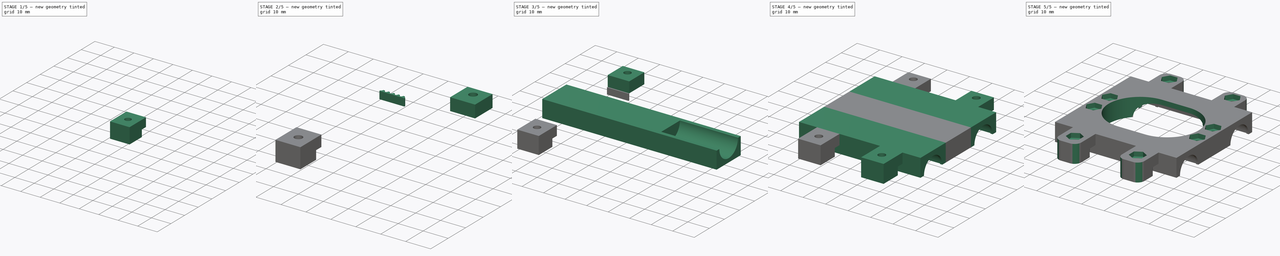
[diagram: build sequence overview — one tinted view per stage of 5, left to right]
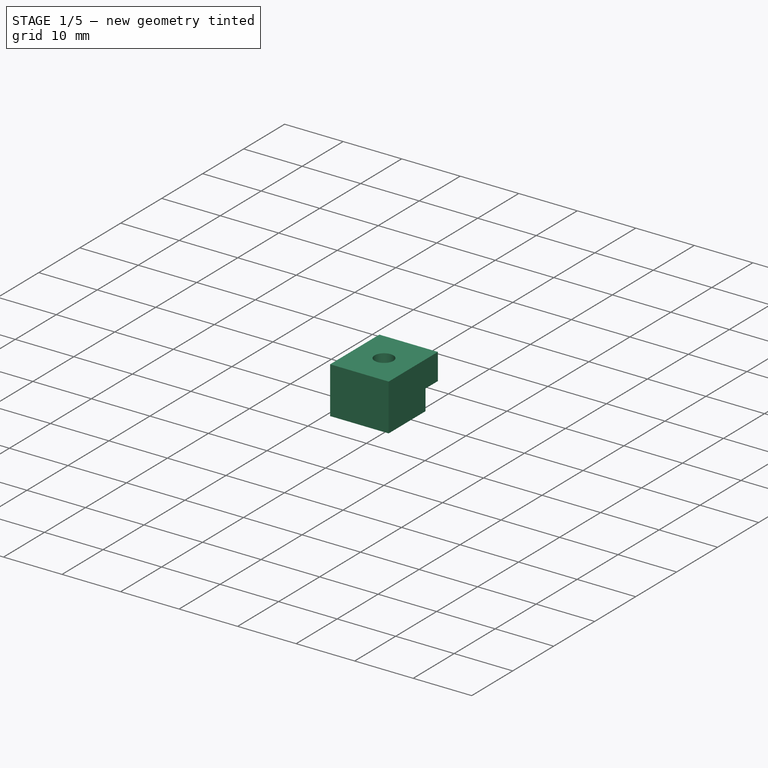
[diagram: stage 1 of 5 — iso view after this stage's code; geometry added in this stage tinted green]
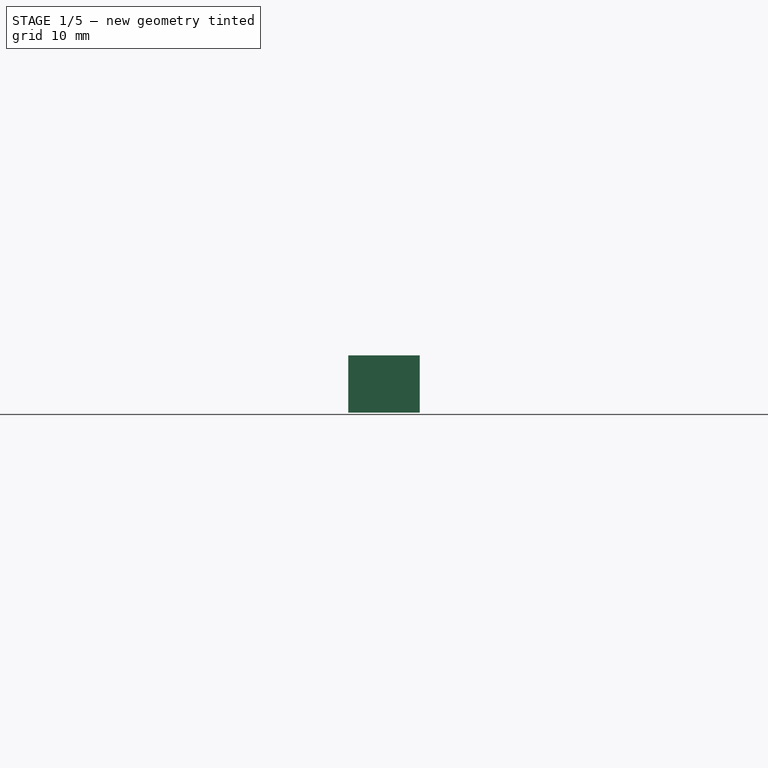
[diagram: stage 1 of 5 — front view after this stage's code; geometry added in this stage tinted green]
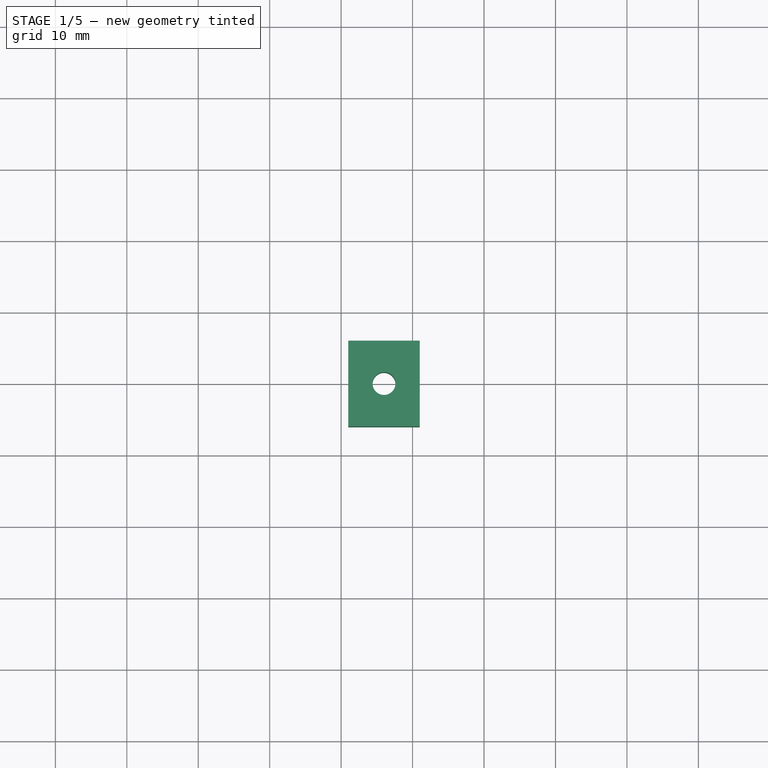
[diagram: stage 1 of 5 — top view after this stage's code; geometry added in this stage tinted green]
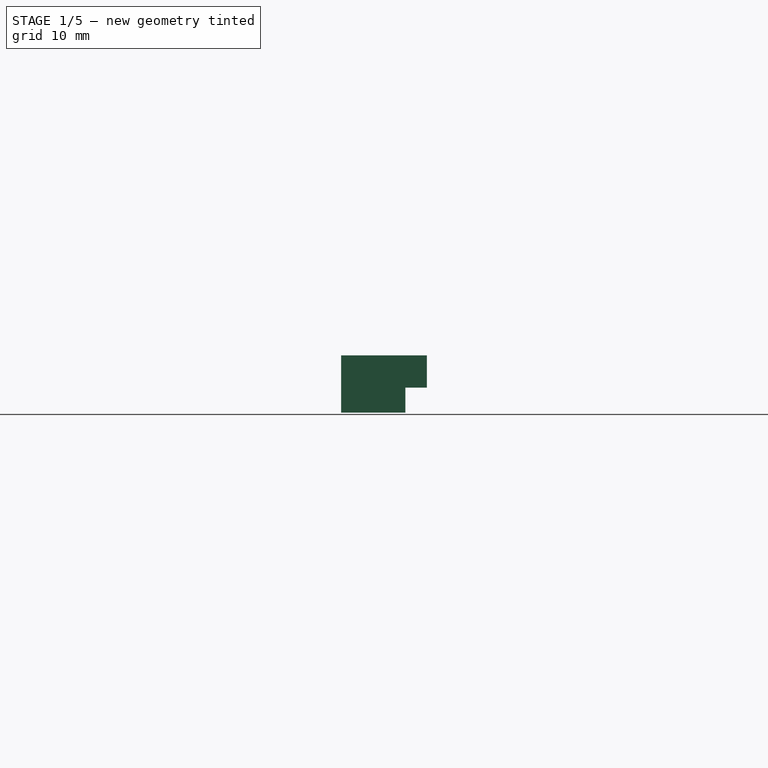
[diagram: stage 1 of 5 — right view after this stage's code; geometry added in this stage tinted green]
FCSTD DOCUMENT  (FreeCAD 0.18R15441 (Git))
Label: CarriageHalf2_Alt1
License: All rights reserved
LicenseURL: http://en.wikipedia.org/wiki/All_rights_reserved
objects: Sketcher::SketchObject×8, PartDesign::Pad×6, Part::Mirroring×4, Part::Box×4, PartDesign::Plane×3, PartDesign::Body×3, Part::Cylinder×2, Part::FeaturePython×2, App::Part×2, PartDesign::Pocket×2, PartDesign::Fillet×2, Part::Cut×1, Part::MultiFuse×1, PartDesign::FeatureBase×1
note: 47 computed .brp shape members not serialized (recipe doc carries the construction recipe); baked Part::Feature solids carry a one-line shape summary decoded from their .brp

FEATURE [Part::Box] Box001  label="ClipCube"
  AttacherType = Attacher::AttachEngine3D
  Height = 8
  Length = 10
  Placement = pos=(0,-2,0) rot=(0,0,1;0rad)
  Width = 12
FEATURE [Part::Cylinder] Cylinder  label="ClipScrewHole"
  Angle = 360
  AttacherType = Attacher::AttachEngine3D
  Height = 8
  Placement = pos=(5,4,0) rot=(0,0,1;0rad)
  Radius = 1.6
FEATURE [Sketcher::SketchObject] Sketch015  label="HotendClampingSketch"
  MapMode = 5
  sketch-geometry (10):
    g0: ArcOfCircle CenterX=-6 CenterY=0 CenterZ=0 NormalX=0 NormalY=0 NormalZ=1 AngleXU=0 Radius=14 StartAngle=1.5708 EndAngle=4.71239
    g1: ArcOfCircle CenterX=6 CenterY=0 CenterZ=0 NormalX=0 NormalY=0 NormalZ=1 AngleXU=0 Radius=14 StartAngle=4.71239 EndAngle=7.85398
    g2: LineSegment StartX=-6 StartY=-14 StartZ=0 EndX=6 EndY=-14 EndZ=0
    g3: LineSegment StartX=-6 StartY=14 StartZ=0 EndX=6 EndY=14 EndZ=0
    g4: LineSegment [constr] StartX=-6 StartY=0 StartZ=0 EndX=0 EndY=0 EndZ=0
    g5: LineSegment [constr] StartX=0 StartY=0 StartZ=0 EndX=6 EndY=0 EndZ=0
    g6: Circle CenterX=23 CenterY=5 CenterZ=0 NormalX=0 NormalY=0 NormalZ=1 AngleXU=0 Radius=1.6
    g7: Circle CenterX=23 CenterY=-5 CenterZ=0 NormalX=0 NormalY=0 NormalZ=1 AngleXU=0 Radius=1.6
    g8: Circle CenterX=-23 CenterY=5 CenterZ=0 NormalX=0 NormalY=0 NormalZ=1 AngleXU=0 Radius=1.6
    g9: Circle CenterX=-23 CenterY=-5 CenterZ=0 NormalX=0 NormalY=0 NormalZ=1 AngleXU=0 Radius=1.6
  constraints (23):
    c: Tangent(g0,g3) = 1.5708
    c: Tangent(g0,g2) = -1.5708
    c: Tangent(g2,g1) = -1.5708
    c: Tangent(g3,g1) = 1.5708
    c: Horizontal(g2)
    c: Equal(g0,g1)
    c: PointOnObject(g0,g-1)
    c: Coincident(g4,g0)
    c: Coincident(g4,g-1)
    c: Coincident(g5,g-1)
    c: Coincident(g5,g1)
    c: Equal(g4,g5)
    c: Radius(g1) = 14
    c: Distance(g4) = 6
    c: Symmetric(g8,g6,g-2)
    c: Symmetric(g6,g7,g-1)
    c: Symmetric(g8,g9,g-1)
    c: Equal(g6,g8)
    c: Equal(g8,g9)
    c: Equal(g9,g7)
    c: Radius(g6) = 1.6
    c: Distance(g6,g8) = 46
    c: Distance(g6,g7) = 10
FEATURE [Part::Box] Box003  label="ClipBeltHole"
  AttacherType = Attacher::AttachEngine3D
  Height = 3.5
  Length = 10
  Placement = pos=(0,7,0) rot=(0,0,1;0rad)
  Width = 3
FEATURE [Part::FeaturePython] XOR  label="HalfClip"  # WARN: FeaturePython — macro-defined, semantics opaque (R4)
  Objects = -> [Box001,Cylinder,Box003]
  Placement = pos=(9,-34,-8) rot=(0,0,1;0rad)
  Tolerance = 0
FEATURE [Part::Mirroring] Part__Mirroring004  label="HalfClip_Mirror"
  Base = (0,0,0)
  Normal = (1,0,0)
  Source = -> XOR
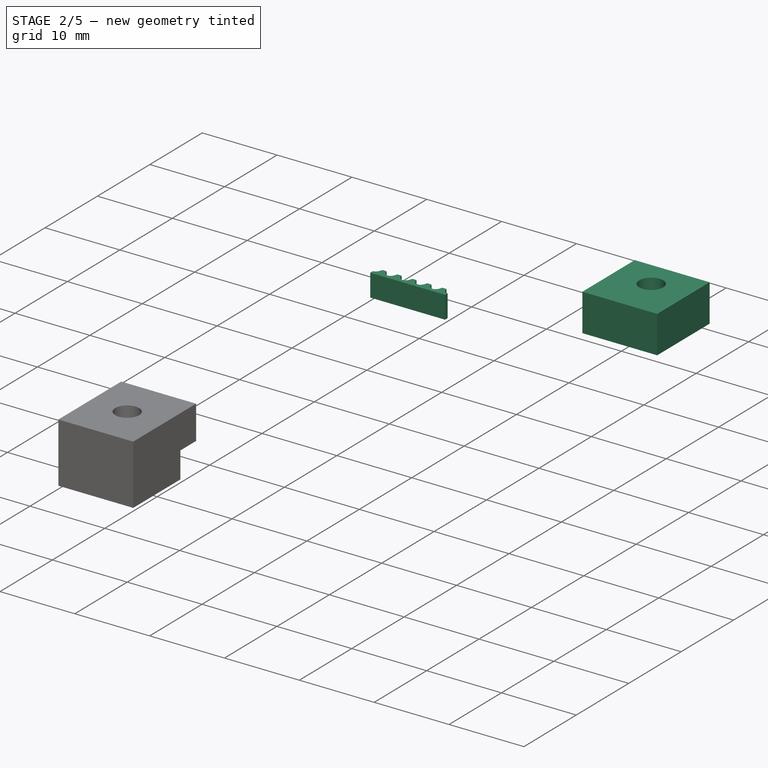
[diagram: stage 2 of 5 — iso view after this stage's code; geometry added in this stage tinted green]
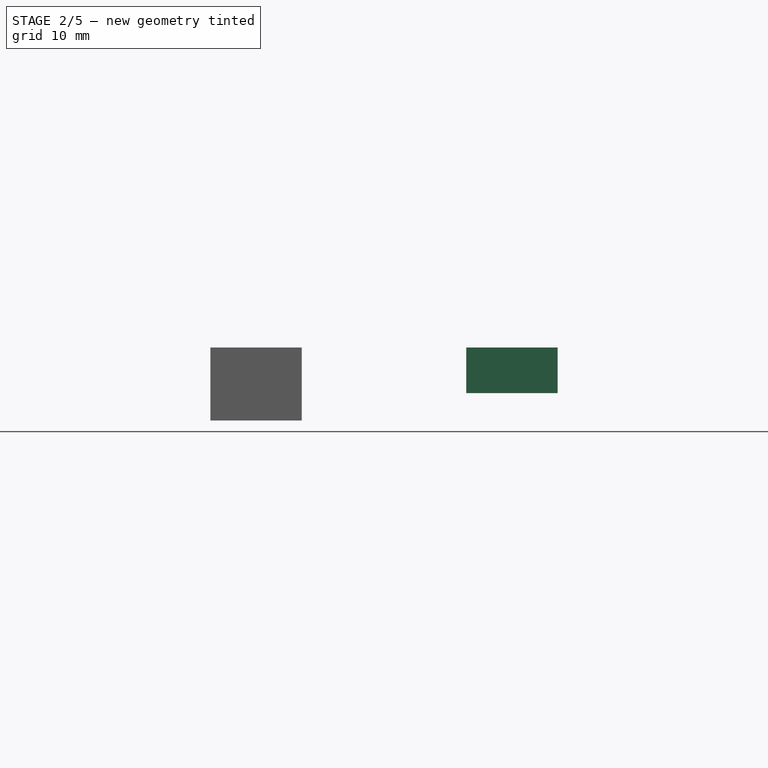
[diagram: stage 2 of 5 — front view after this stage's code; geometry added in this stage tinted green]
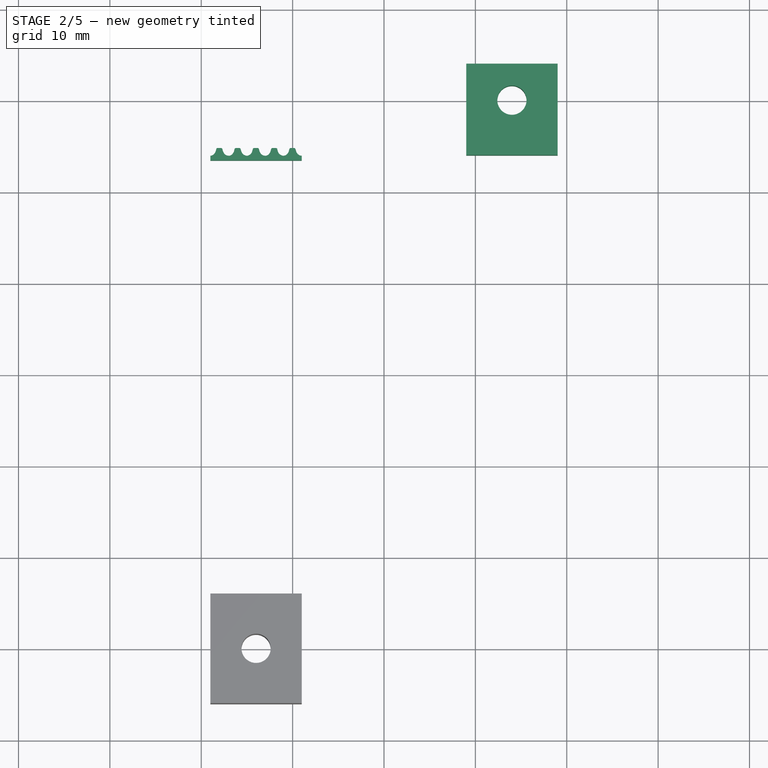
[diagram: stage 2 of 5 — top view after this stage's code; geometry added in this stage tinted green]
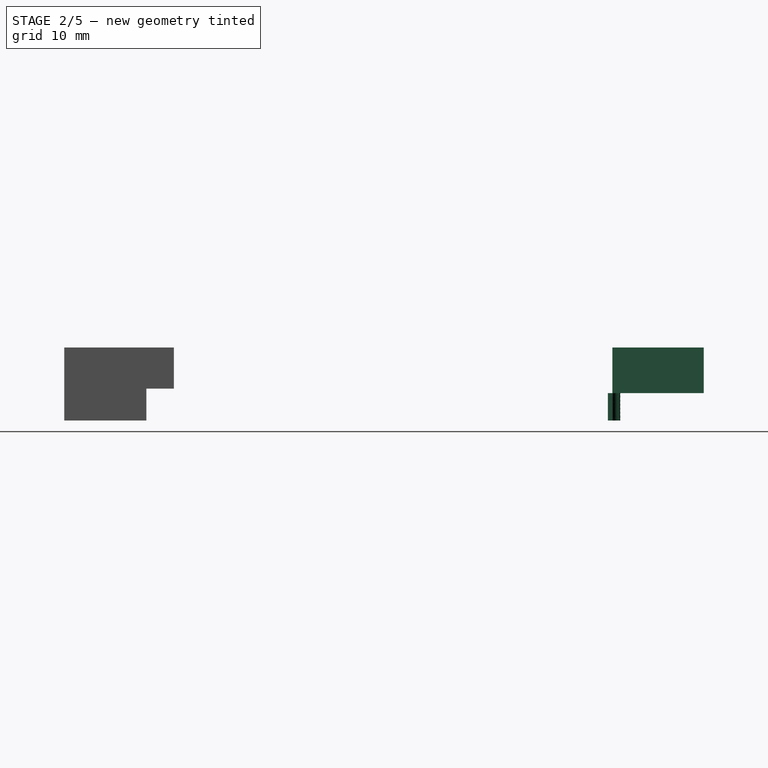
[diagram: stage 2 of 5 — right view after this stage's code; geometry added in this stage tinted green]
FEATURE [Part::Box] Box002  label="BeltClipCube"
  AttacherType = Attacher::AttachEngine3D
  Height = 5
  Length = 10
  Width = 10
FEATURE [Part::Cylinder] Cylinder001  label="BeltClipScrewHole"
  Angle = 360
  AttacherType = Attacher::AttachEngine3D
  Height = 5
  Placement = pos=(5,6,0) rot=(0,0,1;0rad)
  Radius = 1.6
FEATURE [Part::Cut] Cut001  label="BeltHalfClipCut"
  Base = -> Box002
  Placement = pos=(9,24,-5) rot=(0,0,1;0rad)
  Tool = -> Cylinder001
FEATURE [Sketcher::SketchObject] Sketch008  label="BT_TeethSketch"
  MapMode = 5
  Support = -> [XY_Plane006]
  sketch-geometry (8):
    g0: BSplineCurve PolesCount=12 KnotsCount=8 Degree=3 IsPeriodic=0
    g1: BSplineCurve PolesCount=12 KnotsCount=8 Degree=3 IsPeriodic=0
    g2: BSplineCurve PolesCount=12 KnotsCount=8 Degree=3 IsPeriodic=0
    g3: LineSegment StartX=10 StartY=0.5 StartZ=0 EndX=0 EndY=0.5 EndZ=0
    g4: LineSegment StartX=0 StartY=0.5 StartZ=0 EndX=0 EndY=0 EndZ=0
    g5: BSplineCurve PolesCount=12 KnotsCount=8 Degree=3 IsPeriodic=0
    g6: BSplineCurve PolesCount=12 KnotsCount=8 Degree=3 IsPeriodic=0
    g7: LineSegment StartX=10 StartY=0 StartZ=0 EndX=10 EndY=0.5 EndZ=0
  constraints (23):
    c: Coincident(g1,g0)
    c: PointOnObject(g0,g-1)
    c: PointOnObject(g1,g-1)
    c: PointOnObject(g2,g-1)
    c: Horizontal(g3)
    c: Coincident(g4,g3)
    c: Coincident(g4,g-1)
    c: Vertical(g4)
    c: Coincident(g5,g2)
    c: PointOnObject(g5,g-1)
    c: Coincident(g6,g5)
    c: PointOnObject(g6,g-1)
    c: Distance(g0,g0) = 2
    c: Distance(g0,g1) = 2
    c: Distance(g1,g2) = 2
    c: Distance(g2,g5) = 2
    c: Distance(g5,g6) = 2
    c: Coincident(g7,g6)
    c: Coincident(g7,g3)
    c: Vertical(g7)
    c: Coincident(g1,g2)
    c: Coincident(g0,g4)
    c: Distance(g4) = 0.5
FEATURE [PartDesign::Pad] Pad  label="BT_TeethPad"
  Length = 3
  Length2 = 100
  Profile = -> Sketch008
  Type = 0
FEATURE [PartDesign::Body] Body  label="BeltTeethBody"
  Group = -> [Sketch008,Pad]
  Origin = -> Origin006
  Placement = pos=(19,24,-8) rot=(0,0,1;3.14159rad)
  Tip = -> Pad
FEATURE [Part::Mirroring] Part__Mirroring003  label="BeltTeethBody_Mirror"
  Base = (0,0,0)
  Normal = (1,0,0)
  Source = -> Body
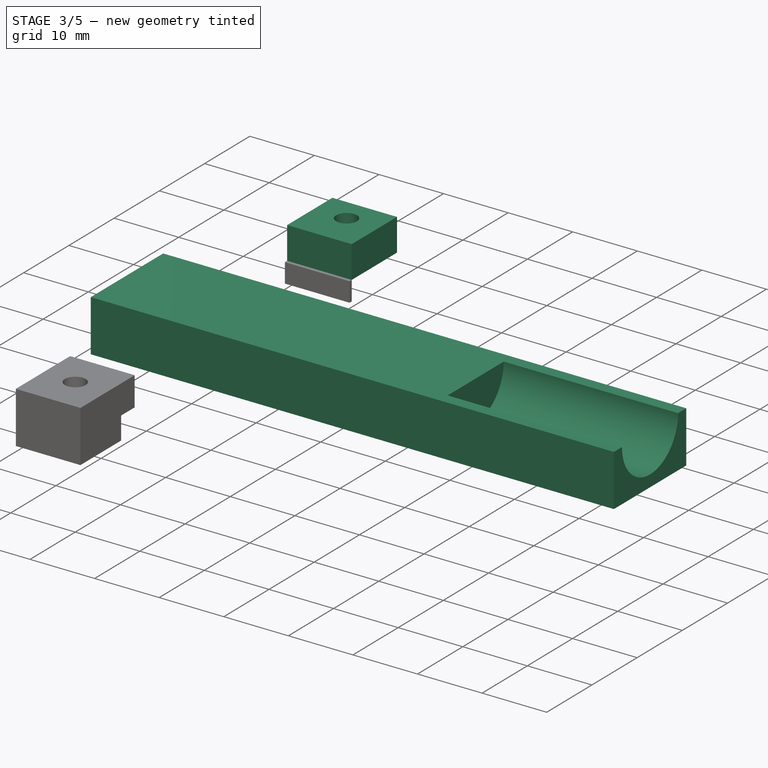
[diagram: stage 3 of 5 — iso view after this stage's code; geometry added in this stage tinted green]
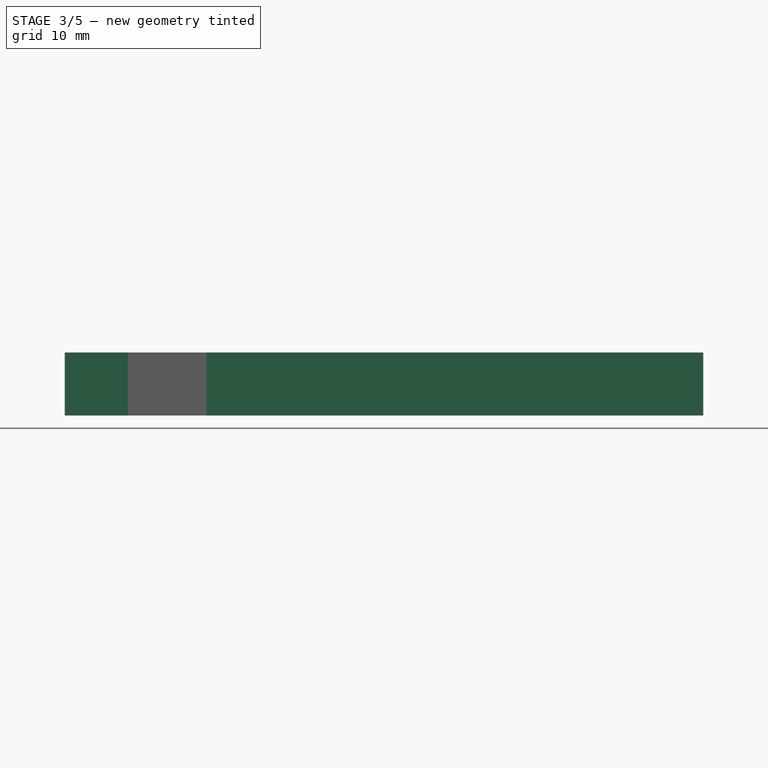
[diagram: stage 3 of 5 — front view after this stage's code; geometry added in this stage tinted green]
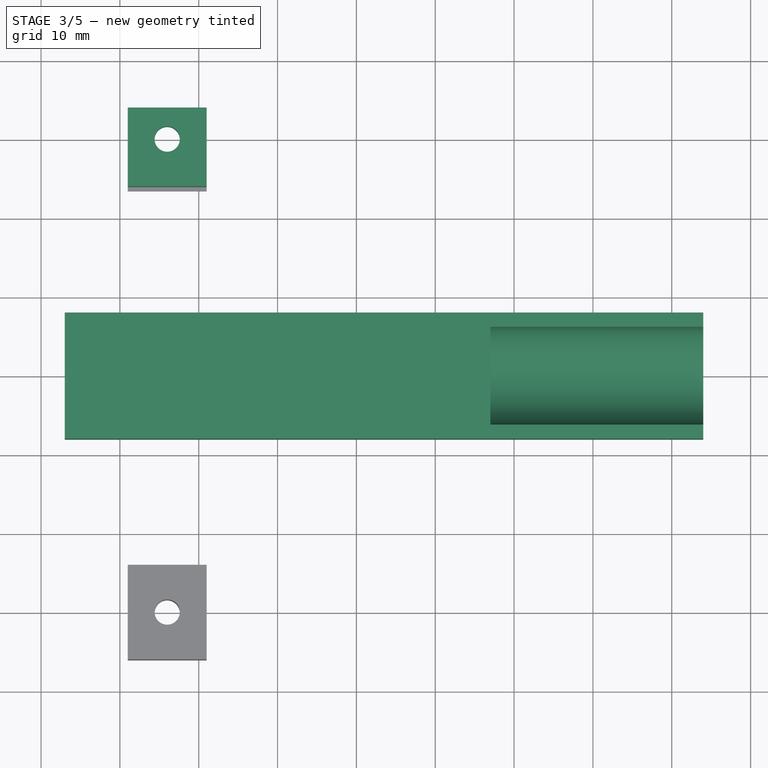
[diagram: stage 3 of 5 — top view after this stage's code; geometry added in this stage tinted green]
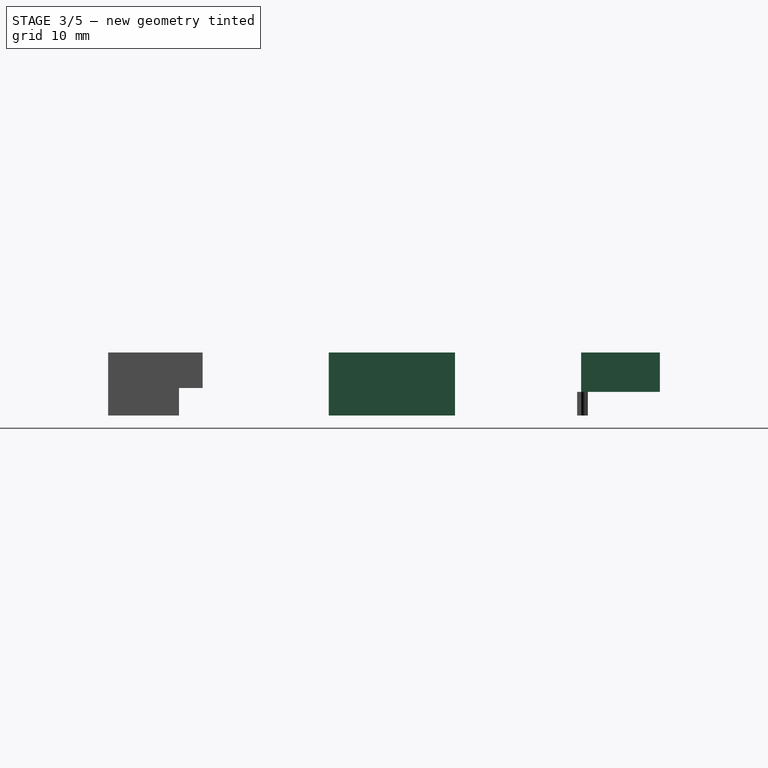
[diagram: stage 3 of 5 — right view after this stage's code; geometry added in this stage tinted green]
FEATURE [Sketcher::SketchObject] Sketch002  label="ClipSketch"
  MapMode = 5
  Placement = pos=(0,0,0) rot=(0.57735,0.57735,0.57735;2.0944rad)
  Support = -> [YZ_Plane002]
  sketch-geometry (6):
    g0: LineSegment StartX=-8 StartY=0 StartZ=0 EndX=-8 EndY=-8 EndZ=0
    g1: LineSegment StartX=8 StartY=0 StartZ=0 EndX=8 EndY=-8 EndZ=0
    g2: LineSegment StartX=-8 StartY=-8 StartZ=0 EndX=8 EndY=-8 EndZ=0
    g3: ArcOfCircle CenterX=0 CenterY=0 CenterZ=0 NormalX=0 NormalY=0 NormalZ=1 AngleXU=0 Radius=6.2 StartAngle=3.14159 EndAngle=6.28319
    g4: LineSegment StartX=-8 StartY=0 StartZ=0 EndX=-6.2 EndY=0 EndZ=0
    g5: LineSegment StartX=6.2 StartY=0 StartZ=0 EndX=8 EndY=0 EndZ=0
  constraints (17):
    c: Symmetric(g0,g1,g-2)
    c: PointOnObject(g0,g-1)
    c: Coincident(g2,g0)
    c: Coincident(g2,g1)
    c: Distance(g1) = 8
    c: PointOnObject(g3,g-1)
    c: PointOnObject(g3,g-1)
    c: Radius(g3) = 6.2
    c: Coincident(g3,g-1)
    c: Distance(g2) = 16
    c: Horizontal(g2)
    c: Vertical(g0)
    c: Coincident(g4,g0)
    c: Coincident(g4,g3)
    c: Coincident(g5,g3)
    c: Coincident(g5,g1)
    c: Vertical(g1)
FEATURE [Sketcher::SketchObject] Sketch001  label="ClipNotch1Sketch"
  ExternalGeometry = -> [Sketch002]
  MapMode = 5
  Placement = pos=(0,0,0) rot=(0.57735,0.57735,0.57735;2.0944rad)
  Support = -> [YZ_Plane002]
  sketch-geometry (4):
    g0: ArcOfCircle CenterX=0 CenterY=0 CenterZ=0 NormalX=0 NormalY=0 NormalZ=1 AngleXU=0 Radius=6.2 StartAngle=3.14159 EndAngle=6.28319
    g1: ArcOfCircle CenterX=0 CenterY=0 CenterZ=0 NormalX=0 NormalY=0 NormalZ=1 AngleXU=0 Radius=5.8 StartAngle=3.14159 EndAngle=6.28319
    g2: LineSegment StartX=-6.2 StartY=0 StartZ=0 EndX=-5.8 EndY=0 EndZ=0
    g3: LineSegment StartX=5.8 StartY=0 StartZ=0 EndX=6.2 EndY=0 EndZ=0
  constraints (11):
    c: Coincident(g0,g-1)
    c: Coincident(g0,g-3)
    c: PointOnObject(g0,g-1)
    c: Coincident(g1,g0)
    c: Coincident(g2,g0)
    c: Coincident(g2,g1)
    c: Horizontal(g2)
    c: Coincident(g3,g1)
    c: Coincident(g3,g0)
    c: Horizontal(g3)
    c: Radius(g1) = 5.8
FEATURE [PartDesign::Pad] Pad009  label="ClipPad"
  Length = 54
  Length2 = 100
  Placement = pos=(0,0,0) rot=(0.57735,0.57735,0.57735;2.0944rad)
  Profile = -> Sketch002
  Type = 0
FEATURE [PartDesign::Pad] Pad001  label="ClipNotch1Pad"
  BaseFeature = -> Pad009
  Length = 1
  Length2 = 100
  Placement = pos=(0,0,0) rot=(0.57735,0.57735,0.57735;2.0944rad)
  Profile = -> Sketch001
  Type = 0
FEATURE [PartDesign::Plane] DatumPlane  label="ClipNotch2Plane"
  AttachmentOffset = pos=(0,0,13.5) rot=(0,0,1;0rad)
  Length = 24
  MapMode = 5
  Placement = pos=(13.5,-1.5243e-12,1.5243e-12) rot=(0.57735,0.57735,0.57735;2.0944rad)
  ResizeMode = 0
  Support = -> [YZ_Plane002]
  Width = 24
FEATURE [Sketcher::SketchObject] Sketch003  label="ClipNotch2Sketch"
  ExternalGeometry = -> [Sketch001]
  MapMode = 5
  Placement = pos=(13.5,-1.5243e-12,1.5243e-12) rot=(0.57735,0.57735,0.57735;2.0944rad)
  Support = -> [DatumPlane]
  sketch-geometry (4):
    g0: ArcOfCircle CenterX=0 CenterY=0 CenterZ=0 NormalX=0 NormalY=0 NormalZ=1 AngleXU=0 Radius=6.2 StartAngle=3.14159 EndAngle=6.28319
    g1: ArcOfCircle CenterX=0 CenterY=0 CenterZ=0 NormalX=0 NormalY=0 NormalZ=1 AngleXU=0 Radius=5.8 StartAngle=3.14159 EndAngle=6.28319
    g2: LineSegment StartX=-6.2 StartY=0 StartZ=0 EndX=-5.8 EndY=0 EndZ=0
    g3: LineSegment StartX=5.8 StartY=0 StartZ=0 EndX=6.2 EndY=0 EndZ=0
  constraints (10):
    c: Coincident(g0,g-1)
    c: Coincident(g0,g-3)
    c: Coincident(g0,g-3)
    c: Coincident(g1,g0)
    c: Coincident(g1,g-4)
    c: Coincident(g1,g-4)
    c: Coincident(g2,g0)
    c: Coincident(g2,g1)
    c: Coincident(g3,g1)
    c: Coincident(g3,g0)
FEATURE [PartDesign::Pad] Pad010  label="ClipNotch2Pad"
  BaseFeature = -> Pad001
  Length = 1
  Length2 = 100
  Placement = pos=(0,0,0) rot=(0.57735,0.57735,0.57735;2.0944rad)
  Profile = -> Sketch003
  Reversed = true
  Type = 0
FEATURE [Part::Box] Box  label="BaseCube"
  AttacherType = Attacher::AttachEngine3D
  Height = 8
  Length = 54
  Placement = pos=(-27,-8,-8) rot=(0,0,1;0rad)
  Width = 16
FEATURE [Part::Mirroring] Part__Mirroring002  label="BeltHalfClipCut_Mirror"
  Base = (0,0,0)
  Normal = (1,0,0)
  Source = -> Cut001
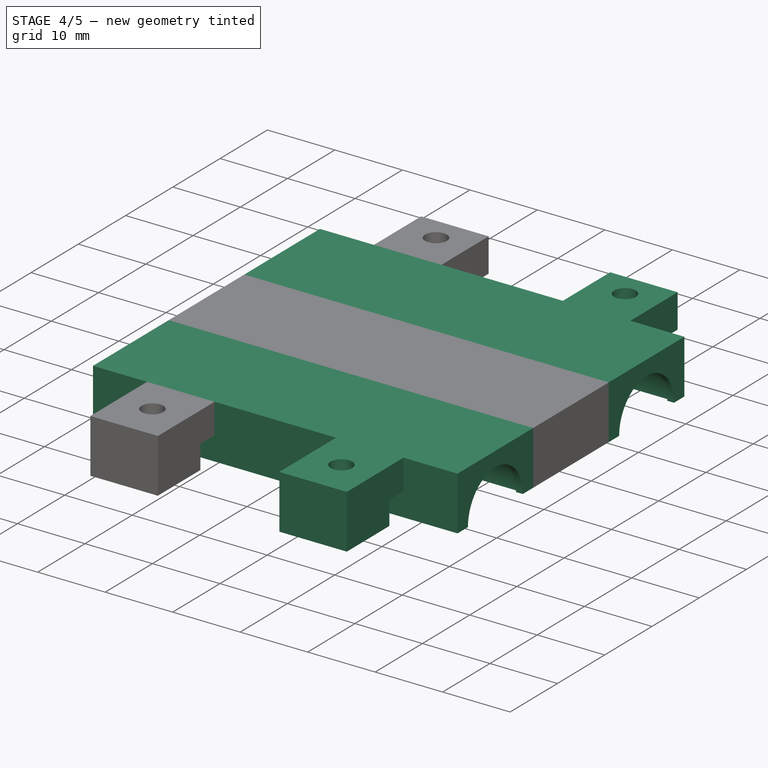
[diagram: stage 4 of 5 — iso view after this stage's code; geometry added in this stage tinted green]
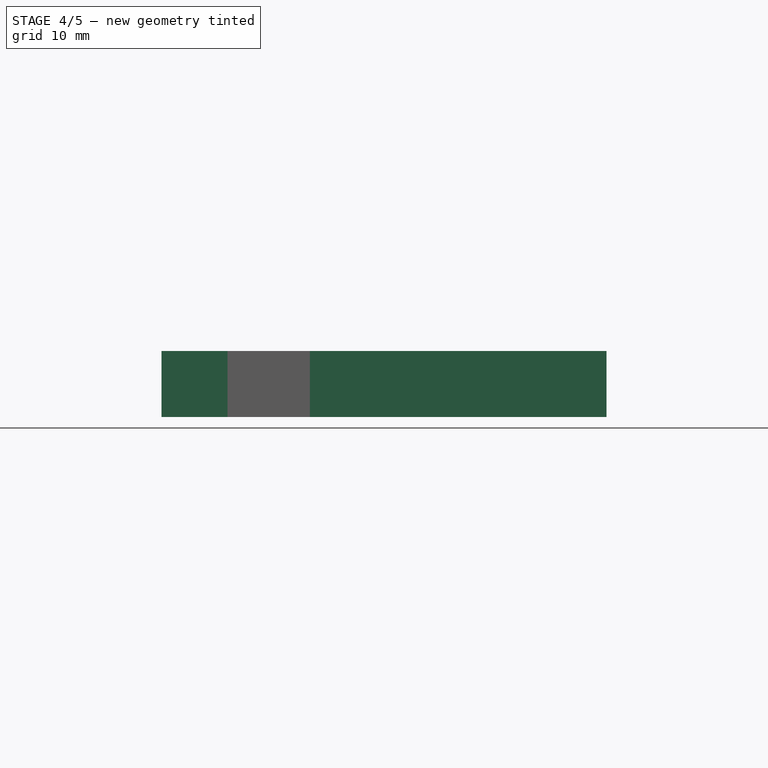
[diagram: stage 4 of 5 — front view after this stage's code; geometry added in this stage tinted green]
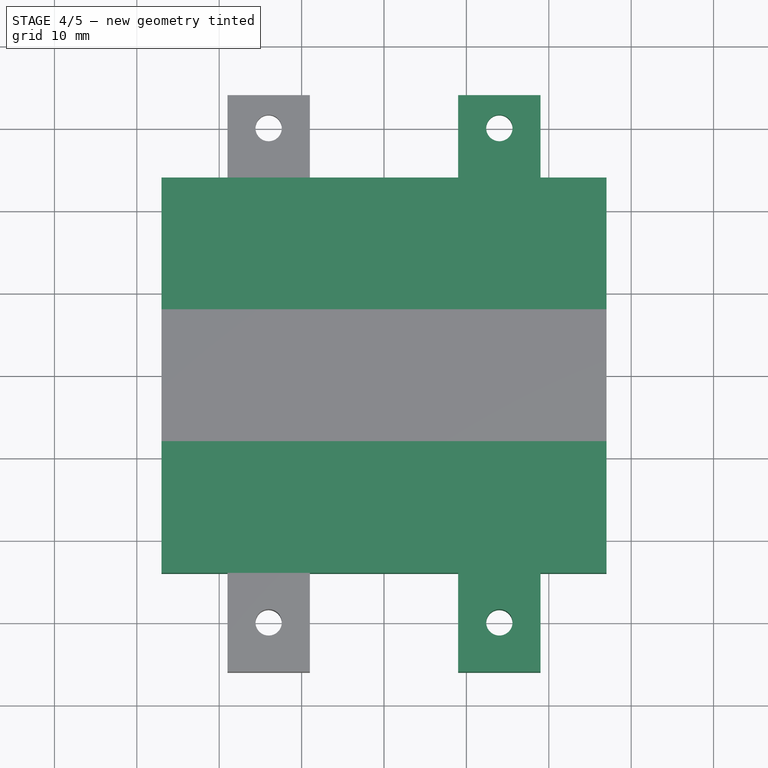
[diagram: stage 4 of 5 — top view after this stage's code; geometry added in this stage tinted green]
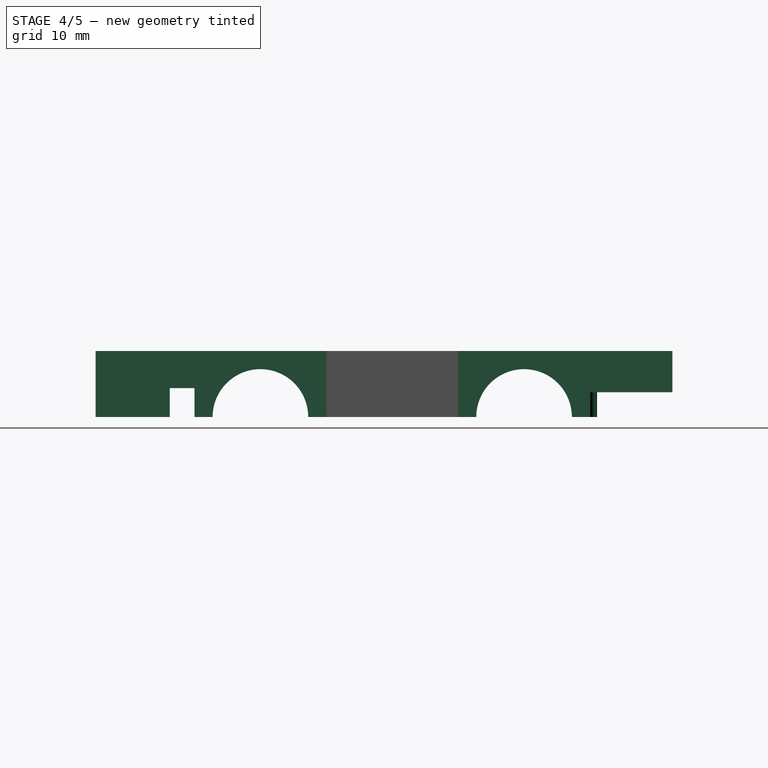
[diagram: stage 4 of 5 — right view after this stage's code; geometry added in this stage tinted green]
FEATURE [PartDesign::Plane] DatumPlane001  label="ClipNotch3Plane"
  AttachmentOffset = pos=(0,0,40.5) rot=(0,0,1;0rad)
  Length = 24
  MapMode = 5
  Placement = pos=(40.5,-4.5728e-12,4.5728e-12) rot=(0.57735,0.57735,0.57735;2.0944rad)
  ResizeMode = 0
  Support = -> [YZ_Plane002]
  Width = 24
FEATURE [Sketcher::SketchObject] Sketch004  label="ClipNotch3Sketch"
  ExternalGeometry = -> [Sketch001]
  MapMode = 5
  Placement = pos=(40.5,-4.5728e-12,4.5728e-12) rot=(0.57735,0.57735,0.57735;2.0944rad)
  Support = -> [DatumPlane001]
  sketch-geometry (4):
    g0: ArcOfCircle CenterX=0 CenterY=0 CenterZ=0 NormalX=0 NormalY=0 NormalZ=1 AngleXU=0 Radius=5.8 StartAngle=3.14159 EndAngle=6.28319
    g1: ArcOfCircle CenterX=0 CenterY=0 CenterZ=0 NormalX=0 NormalY=0 NormalZ=1 AngleXU=0 Radius=6.2 StartAngle=3.14159 EndAngle=6.28319
    g2: LineSegment StartX=-6.2 StartY=0 StartZ=0 EndX=-5.8 EndY=0 EndZ=0
    g3: LineSegment StartX=5.8 StartY=0 StartZ=0 EndX=6.2 EndY=0 EndZ=0
  constraints (10):
    c: Coincident(g0,g-1)
    c: Coincident(g0,g-3)
    c: Coincident(g0,g-3)
    c: Coincident(g1,g0)
    c: Coincident(g1,g-4)
    c: Coincident(g1,g-4)
    c: Coincident(g2,g1)
    c: Coincident(g2,g0)
    c: Coincident(g3,g0)
    c: Coincident(g3,g1)
FEATURE [PartDesign::Pad] Pad011  label="ClipNotch3Pad"
  BaseFeature = -> Pad010
  Length = 1
  Length2 = 100
  Placement = pos=(0,0,0) rot=(0.57735,0.57735,0.57735;2.0944rad)
  Profile = -> Sketch004
  Type = 0
FEATURE [PartDesign::Plane] DatumPlane002  label="ClipNotch4Plane"
  AttachmentOffset = pos=(0,0,54) rot=(0,0,1;0rad)
  Length = 24
  MapMode = 5
  Placement = pos=(54,-6.0971e-12,6.0971e-12) rot=(0.57735,0.57735,0.57735;2.0944rad)
  ResizeMode = 0
  Support = -> [YZ_Plane002]
  Width = 24
FEATURE [Sketcher::SketchObject] Sketch005  label="ClipNotch4Sketch"
  ExternalGeometry = -> [Sketch001]
  MapMode = 5
  Placement = pos=(54,-6.0971e-12,6.0971e-12) rot=(0.57735,0.57735,0.57735;2.0944rad)
  Support = -> [DatumPlane002]
  sketch-geometry (4):
    g0: ArcOfCircle CenterX=0 CenterY=0 CenterZ=0 NormalX=0 NormalY=0 NormalZ=1 AngleXU=0 Radius=5.8 StartAngle=3.14159 EndAngle=6.28319
    g1: ArcOfCircle CenterX=0 CenterY=0 CenterZ=0 NormalX=0 NormalY=0 NormalZ=1 AngleXU=0 Radius=6.2 StartAngle=3.14159 EndAngle=6.28319
    g2: LineSegment StartX=-6.2 StartY=0 StartZ=0 EndX=-5.8 EndY=0 EndZ=0
    g3: LineSegment StartX=5.8 StartY=0 StartZ=0 EndX=6.2 EndY=0 EndZ=0
  constraints (10):
    c: Coincident(g0,g-1)
    c: Coincident(g0,g-3)
    c: Coincident(g0,g-3)
    c: Coincident(g1,g0)
    c: Coincident(g1,g-4)
    c: Coincident(g1,g-4)
    c: Coincident(g2,g1)
    c: Coincident(g2,g0)
    c: Coincident(g3,g0)
    c: Coincident(g3,g1)
FEATURE [PartDesign::Pad] Pad012  label="ClipNotch4Pad"
  BaseFeature = -> Pad011
  Length = 1
  Length2 = 100
  Placement = pos=(0,0,0) rot=(0.57735,0.57735,0.57735;2.0944rad)
  Profile = -> Sketch005
  Reversed = true
  Type = 0
FEATURE [PartDesign::Body] Body001  label="Clip_LM6UU"
  Group = -> [Sketch002,Pad009,Sketch001,Pad001,DatumPlane,Sketch003,Pad010,DatumPlane001,Sketch004,Pad011,DatumPlane002,Sketch005,Pad012]
  Origin = -> Origin002
  Placement = pos=(-27,16,-8) rot=(1,0,0;3.14159rad)
  Tip = -> Pad012
FEATURE [Part::Mirroring] Part__Mirroring  label="Clip_LM6UU_Mirror"
  Base = (0,0,0)
  Normal = (0,1,0)
  Source = -> Body001
FEATURE [App::Part] Part  label="BaseObjects"
  Group = -> [Body001,Part__Mirroring,Box,Box001,Cylinder,Cut001,Cylinder001,Box002,Part__Mirroring002,Body,Part__Mirroring003,Box003,XOR,Part__Mirroring004]
  License = CC BY 3.0
  LicenseURL = http://creativecommons.org/licenses/by/3.0/
  Origin = -> Origin
FEATURE [Part::MultiFuse] Fusion  label="CarriageBaseObjectsFusion"
  Shapes = -> [Body001,Part__Mirroring,Box,Cut001,Part__Mirroring002,Body,Part__Mirroring003,XOR,Part__Mirroring004]
FEATURE [PartDesign::FeatureBase] BaseFeature  label="BaseObjectsFusion"
  BaseFeature = -> Fusion
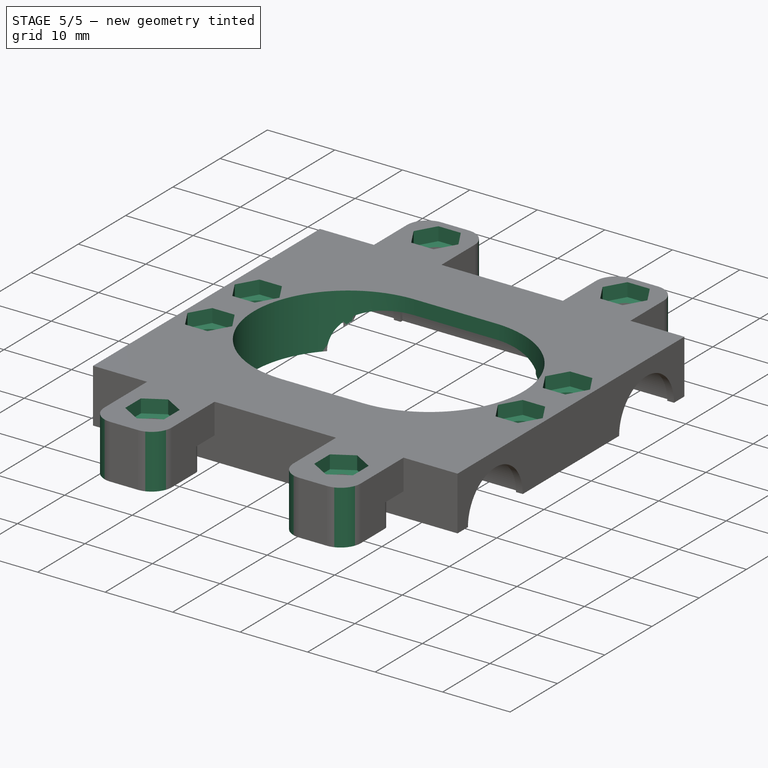
[diagram: stage 5 of 5 — iso view after this stage's code; geometry added in this stage tinted green]
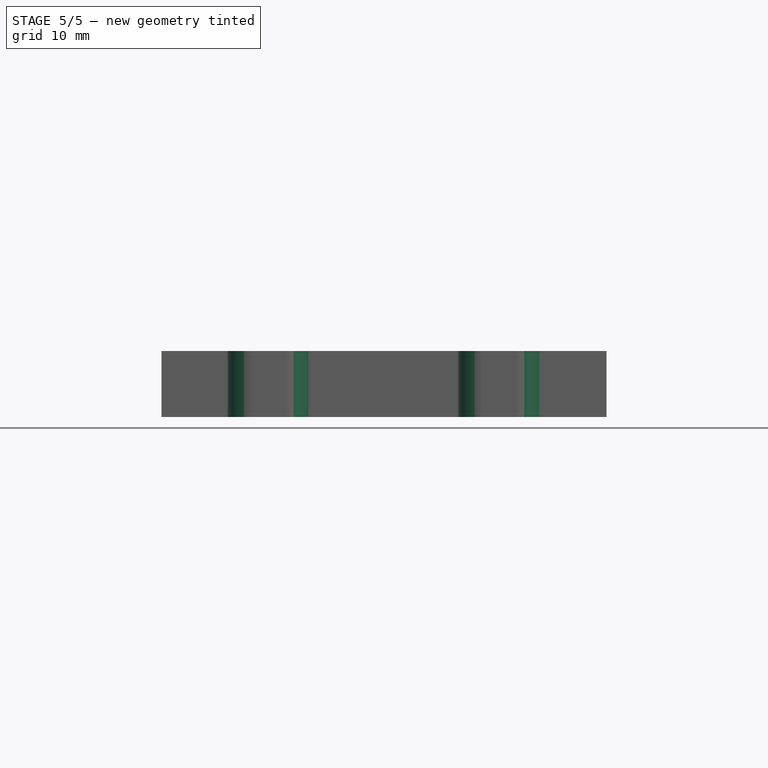
[diagram: stage 5 of 5 — front view after this stage's code; geometry added in this stage tinted green]
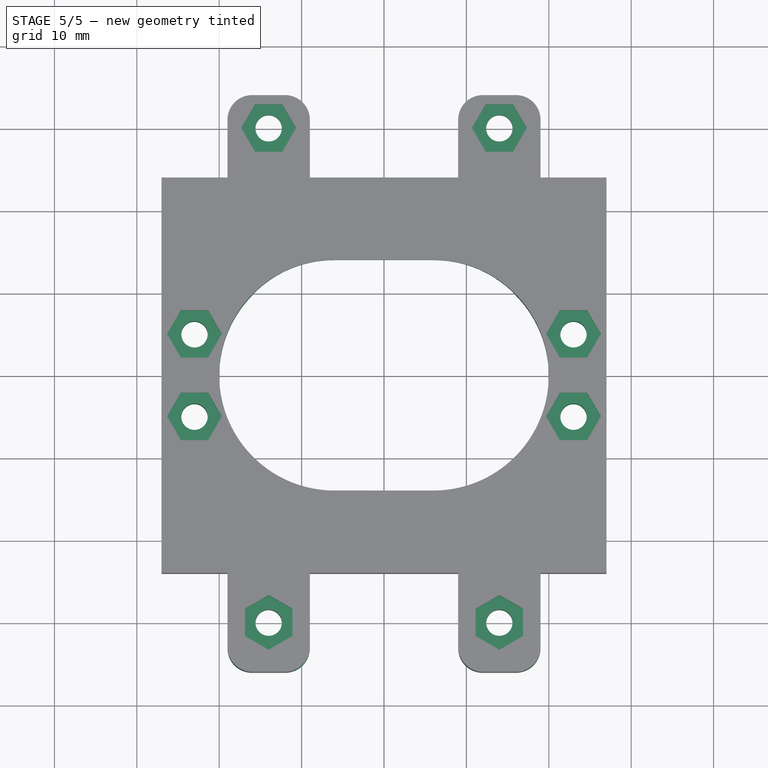
[diagram: stage 5 of 5 — top view after this stage's code; geometry added in this stage tinted green]
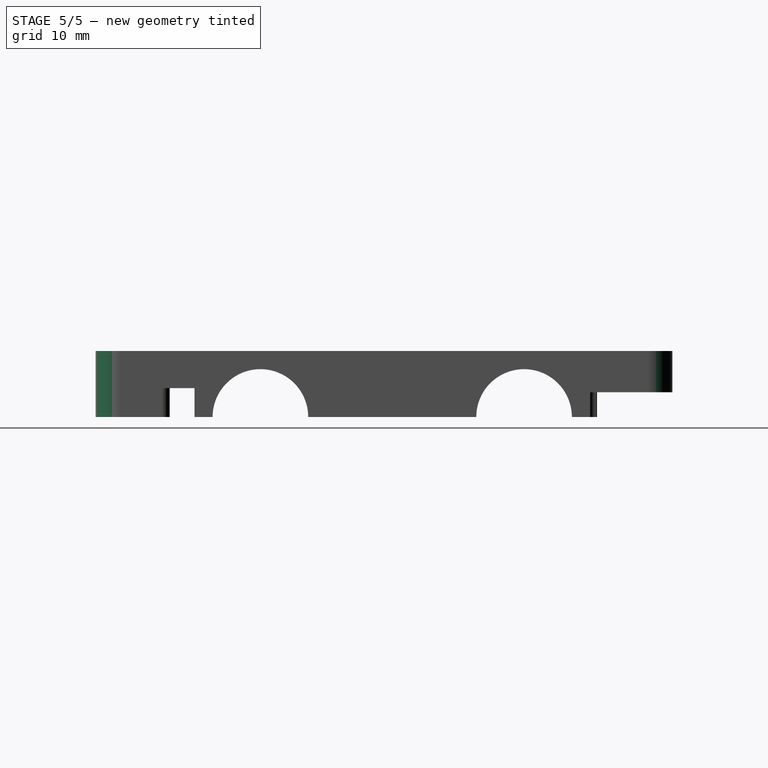
[diagram: stage 5 of 5 — right view after this stage's code; geometry added in this stage tinted green]
FEATURE [PartDesign::Pocket] Pocket  label="HotendClampingPocket"
  BaseFeature = -> BaseFeature
  Length = 5
  Length2 = 100
  Profile = -> Sketch015
  Type = 1
FEATURE [Sketcher::SketchObject] Sketch  label="ScrewNotchSketch"
  MapMode = 5
  Support = -> [XY_Plane008]
  sketch-geometry (56):
    g0: LineSegment StartX=-17.3198 StartY=30 StartZ=0 EndX=-15.6599 EndY=27.125 EndZ=0
    g1: LineSegment StartX=-15.6599 StartY=27.125 StartZ=0 EndX=-12.3401 EndY=27.125 EndZ=0
    g2: LineSegment StartX=-12.3401 StartY=27.125 StartZ=0 EndX=-10.6802 EndY=30 EndZ=0
    g3: LineSegment StartX=-10.6802 StartY=30 StartZ=0 EndX=-12.3401 EndY=32.875 EndZ=0
    g4: LineSegment StartX=-12.3401 StartY=32.875 StartZ=0 EndX=-15.6599 EndY=32.875 EndZ=0
    g5: LineSegment StartX=-15.6599 StartY=32.875 StartZ=0 EndX=-17.3198 EndY=30 EndZ=0
    g6: Circle [constr] CenterX=-14 CenterY=30 CenterZ=0 NormalX=0 NormalY=0 NormalZ=1 AngleXU=0 Radius=3.31976
    g7: LineSegment StartX=12.3401 StartY=27.125 StartZ=0 EndX=15.6599 EndY=27.125 EndZ=0
    g8: LineSegment StartX=15.6599 StartY=27.125 StartZ=0 EndX=17.3198 EndY=30 EndZ=0
    g9: LineSegment StartX=17.3198 StartY=30 StartZ=0 EndX=15.6599 EndY=32.875 EndZ=0
    g10: LineSegment StartX=15.6599 StartY=32.875 StartZ=0 EndX=12.3401 EndY=32.875 EndZ=0
    g11: LineSegment StartX=12.3401 StartY=32.875 StartZ=0 EndX=10.6802 EndY=30 EndZ=0
    g12: LineSegment StartX=10.6802 StartY=30 StartZ=0 EndX=12.3401 EndY=27.125 EndZ=0
    g13: Circle [constr] CenterX=14 CenterY=30 CenterZ=0 NormalX=0 NormalY=0 NormalZ=1 AngleXU=0 Radius=3.31976
    g14: LineSegment StartX=-14 StartY=-33.3198 StartZ=0 EndX=-11.125 EndY=-31.6599 EndZ=0
    g15: LineSegment StartX=-11.125 StartY=-31.6599 StartZ=0 EndX=-11.125 EndY=-28.3401 EndZ=0
    g16: LineSegment StartX=-11.125 StartY=-28.3401 StartZ=0 EndX=-14 EndY=-26.6802 EndZ=0
    g17: LineSegment StartX=-14 StartY=-26.6802 StartZ=0 EndX=-16.875 EndY=-28.3401 EndZ=0
    g18: LineSegment StartX=-16.875 StartY=-28.3401 StartZ=0 EndX=-16.875 EndY=-31.6599 EndZ=0
    g19: LineSegment StartX=-16.875 StartY=-31.6599 StartZ=0 EndX=-14 EndY=-33.3198 EndZ=0
    g20: Circle [constr] CenterX=-14 CenterY=-30 CenterZ=0 NormalX=0 NormalY=0 NormalZ=1 AngleXU=0 Radius=3.31976
    g21: LineSegment StartX=16.875 StartY=-31.6599 StartZ=0 EndX=16.875 EndY=-28.3401 EndZ=0
    g22: LineSegment StartX=16.875 StartY=-28.3401 StartZ=0 EndX=14 EndY=-26.6802 EndZ=0
    g23: LineSegment StartX=14 StartY=-26.6802 StartZ=0 EndX=11.125 EndY=-28.3401 EndZ=0
    g24: LineSegment StartX=11.125 StartY=-28.3401 StartZ=0 EndX=11.125 EndY=-31.6599 EndZ=0
    g25: LineSegment StartX=11.125 StartY=-31.6599 StartZ=0 EndX=14 EndY=-33.3198 EndZ=0
    g26: LineSegment StartX=14 StartY=-33.3198 StartZ=0 EndX=16.875 EndY=-31.6599 EndZ=0
    g27: Circle [constr] CenterX=14 CenterY=-30 CenterZ=0 NormalX=0 NormalY=0 NormalZ=1 AngleXU=0 Radius=3.31976
    g28: LineSegment StartX=-26.3198 StartY=5 StartZ=0 EndX=-24.6599 EndY=2.125 EndZ=0
    g29: LineSegment StartX=-24.6599 StartY=2.125 StartZ=0 EndX=-21.3401 EndY=2.125 EndZ=0
    g30: LineSegment StartX=-21.3401 StartY=2.125 StartZ=0 EndX=-19.6802 EndY=5 EndZ=0
    g31: LineSegment StartX=-19.6802 StartY=5 StartZ=0 EndX=-21.3401 EndY=7.875 EndZ=0
    g32: LineSegment StartX=-21.3401 StartY=7.875 StartZ=0 EndX=-24.6599 EndY=7.875 EndZ=0
    g33: LineSegment StartX=-24.6599 StartY=7.875 StartZ=0 EndX=-26.3198 EndY=5 EndZ=0
    g34: Circle [constr] CenterX=-23 CenterY=5 CenterZ=0 NormalX=0 NormalY=0 NormalZ=1 AngleXU=0 Radius=3.31976
    g35: LineSegment StartX=-26.3198 StartY=-5 StartZ=0 EndX=-24.6599 EndY=-7.875 EndZ=0
    g36: LineSegment StartX=-24.6599 StartY=-7.875 StartZ=0 EndX=-21.3401 EndY=-7.875 EndZ=0
    g37: LineSegment StartX=-21.3401 StartY=-7.875 StartZ=0 EndX=-19.6802 EndY=-5 EndZ=0
    g38: LineSegment StartX=-19.6802 StartY=-5 StartZ=0 EndX=-21.3401 EndY=-2.125 EndZ=0
    g39: LineSegment StartX=-21.3401 StartY=-2.125 StartZ=0 EndX=-24.6599 EndY=-2.125 EndZ=0
    g40: LineSegment StartX=-24.6599 StartY=-2.125 StartZ=0 EndX=-26.3198 EndY=-5 EndZ=0
    g41: Circle [constr] CenterX=-23 CenterY=-5 CenterZ=0 NormalX=0 NormalY=0 NormalZ=1 AngleXU=0 Radius=3.31976
    g42: LineSegment StartX=24.6599 StartY=-7.875 StartZ=0 EndX=26.3198 EndY=-5 EndZ=0
    g43: LineSegment StartX=26.3198 StartY=-5 StartZ=0 EndX=24.6599 EndY=-2.125 EndZ=0
    g44: LineSegment StartX=24.6599 StartY=-2.125 StartZ=0 EndX=21.3401 EndY=-2.125 EndZ=0
    g45: LineSegment StartX=21.3401 StartY=-2.125 StartZ=0 EndX=19.6802 EndY=-5 EndZ=0
    g46: LineSegment StartX=19.6802 StartY=-5 StartZ=0 EndX=21.3401 EndY=-7.875 EndZ=0
    g47: LineSegment StartX=21.3401 StartY=-7.875 StartZ=0 EndX=24.6599 EndY=-7.875 EndZ=0
    g48: Circle [constr] CenterX=23 CenterY=-5 CenterZ=0 NormalX=0 NormalY=0 NormalZ=1 AngleXU=0 Radius=3.31976
    g49: LineSegment StartX=24.6599 StartY=2.125 StartZ=0 EndX=26.3198 EndY=5 EndZ=0
    g50: LineSegment StartX=26.3198 StartY=5 StartZ=0 EndX=24.6599 EndY=7.875 EndZ=0
    g51: LineSegment StartX=24.6599 StartY=7.875 StartZ=0 EndX=21.3401 EndY=7.875 EndZ=0
    g52: LineSegment StartX=21.3401 StartY=7.875 StartZ=0 EndX=19.6802 EndY=5 EndZ=0
    g53: LineSegment StartX=19.6802 StartY=5 StartZ=0 EndX=21.3401 EndY=2.125 EndZ=0
    g54: LineSegment StartX=21.3401 StartY=2.125 StartZ=0 EndX=24.6599 EndY=2.125 EndZ=0
    g55: Circle [constr] CenterX=23 CenterY=5 CenterZ=0 NormalX=0 NormalY=0 NormalZ=1 AngleXU=0 Radius=3.31976
  constraints (134):
    c: Coincident(g0,g1)
    c: Coincident(g1,g2)
    c: Coincident(g2,g3)
    c: Coincident(g3,g4)
    c: Coincident(g4,g5)
    c: Coincident(g5,g0)
    c: Equal(g0,g1)
    c: Equal(g0,g2)
    c: Equal(g0,g3)
    c: Equal(g0,g5)
    c: PointOnObject(g0,g6)
    c: PointOnObject(g1,g6)
    c: PointOnObject(g2,g6)
    c: PointOnObject(g3,g6)
    c: PointOnObject(g4,g6)
    c: PointOnObject(g5,g6)
    c: Coincident(g7,g8)
    c: Coincident(g8,g9)
    c: Coincident(g9,g10)
    c: Coincident(g10,g11)
    c: Coincident(g11,g12)
    c: Coincident(g12,g7)
    c: Equal(g7, g8-g12) x5
    c: PointOnObject(g7,g13)
    c: PointOnObject(g8,g13)
    c: PointOnObject(g9,g13)
    c: PointOnObject(g10,g13)
    c: PointOnObject(g11,g13)
    c: PointOnObject(g12,g13)
    c: Symmetric(g13,g6,g-2)
    c: Coincident(g14,g15)
    c: Coincident(g15,g16)
    c: Coincident(g16,g17)
    c: Coincident(g17,g18)
    c: Coincident(g18,g19)
    c: Coincident(g19,g14)
    c: Equal(g14, g15-g19) x5
    c: PointOnObject(g14,g20)
    c: PointOnObject(g15,g20)
    c: PointOnObject(g16,g20)
    c: PointOnObject(g17,g20)
    c: PointOnObject(g18,g20)
    c: PointOnObject(g19,g20)
    c: Coincident(g21,g22)
    c: Coincident(g22,g23)
    c: Coincident(g23,g24)
    c: Coincident(g24,g25)
    c: Coincident(g25,g26)
    c: Coincident(g26,g21)
    c: Equal(g21, g22-g26) x5
    c: PointOnObject(g21,g27)
    c: PointOnObject(g22,g27)
    c: PointOnObject(g23,g27)
    c: PointOnObject(g24,g27)
    c: PointOnObject(g25,g27)
    c: PointOnObject(g26,g27)
    c: Symmetric(g20,g27,g-2)
    c: Symmetric(g20,g6,g-1)
    c: Equal(g4,g3)
    c: Distance(g20,g6) = 60
    c: Distance(g20,g27) = 28
    c: Vertical(g18)
    c: Vertical(g24)
    c: Equal(g4,g18)
    c: Equal(g18,g24)
    c: Equal(g24,g10)
    c: Distance(g3,g1) = 5.75
    c: Horizontal(g4)
    c: Horizontal(g10)
    c: Coincident(g28,g29)
    c: Coincident(g29,g30)
    c: Coincident(g30,g31)
    c: Coincident(g31,g32)
    c: Coincident(g32,g33)
    c: Coincident(g33,g28)
    c: Equal(g28, g29-g33) x5
    c: PointOnObject(g28,g34)
    c: PointOnObject(g29,g34)
    c: PointOnObject(g30,g34)
    c: PointOnObject(g31,g34)
    c: PointOnObject(g32,g34)
    c: PointOnObject(g33,g34)
    c: Coincident(g35,g36)
    c: Coincident(g36,g37)
    c: Coincident(g37,g38)
    c: Coincident(g38,g39)
    c: Coincident(g39,g40)
    c: Coincident(g40,g35)
    c: Equal(g35, g36-g40) x5
    c: PointOnObject(g35,g41)
    c: PointOnObject(g36,g41)
    c: PointOnObject(g37,g41)
    c: PointOnObject(g38,g41)
    c: PointOnObject(g39,g41)
    c: PointOnObject(g40,g41)
    c: Coincident(g42,g43)
    c: Coincident(g43,g44)
    c: Coincident(g44,g45)
    c: Coincident(g45,g46)
    c: Coincident(g46,g47)
    c: Coincident(g47,g42)
    c: Equal(g42, g43-g47) x5
    c: PointOnObject(g42,g48)
    c: PointOnObject(g43,g48)
    c: PointOnObject(g44,g48)
    c: PointOnObject(g45,g48)
    c: PointOnObject(g46,g48)
    c: PointOnObject(g47,g48)
    c: Coincident(g49,g50)
    c: Coincident(g50,g51)
    c: Coincident(g51,g52)
    c: Coincident(g52,g53)
    c: Coincident(g53,g54)
    c: Coincident(g54,g49)
    c: Equal(g49, g50-g54) x5
    c: PointOnObject(g49,g55)
    c: PointOnObject(g50,g55)
    c: PointOnObject(g51,g55)
    c: PointOnObject(g52,g55)
    c: PointOnObject(g53,g55)
    c: PointOnObject(g54,g55)
    c: Symmetric(g55,g34,g-2)
    c: Symmetric(g41,g34,g-1)
    c: Symmetric(g41,g48,g-2)
    c: Equal(g30,g37)
    c: Equal(g37,g45)
    c: Equal(g45,g52)
    c: Equal(g31,g1)
    c: Distance(g34,g55) = 46
    c: Distance(g34,g41) = 10
    c: Horizontal(g29)
    c: Horizontal(g36)
    c: Horizontal(g47)
    c: Horizontal(g54)
FEATURE [PartDesign::Pocket] Pocket001  label="ScrewNutsPocket"
  BaseFeature = -> Pocket
  Length = 2
  Length2 = 100
  Profile = -> Sketch
  Type = 0
FEATURE [PartDesign::Fillet] Fillet  label="CornersFillet"
  Base = -> Pocket001 [Edge407,Edge402,Edge398,Edge393,Edge22,Edge142,Edge288,Edge286]
  BaseFeature = -> Pocket001
  Radius = 3
FEATURE [PartDesign::Fillet] Fillet001  label="InnerFillet"
  Base = -> Fillet [Edge426,Edge421,Edge417,Edge412]
  BaseFeature = -> Fillet
  Radius = 1
FEATURE [PartDesign::Body] Body002  label="PostCuts"
  BaseFeature = -> Fusion
  Group = -> [BaseFeature,Sketch015,Pocket,Sketch,Pocket001,Fillet,Fillet001]
  Origin = -> Origin008
  Tip = -> Fillet001
FEATURE [App::Part] Part001  label="CarriageHalf"
  Group = -> [Part,Body002]
  License = CC BY 3.0
  LicenseURL = http://creativecommons.org/licenses/by/3.0/
  Origin = -> Origin007
FEATURE [Part::FeaturePython] refine  label="CarriageHalf_Refined"  # WARN: FeaturePython — macro-defined, semantics opaque (R4)
  Base = -> Body002
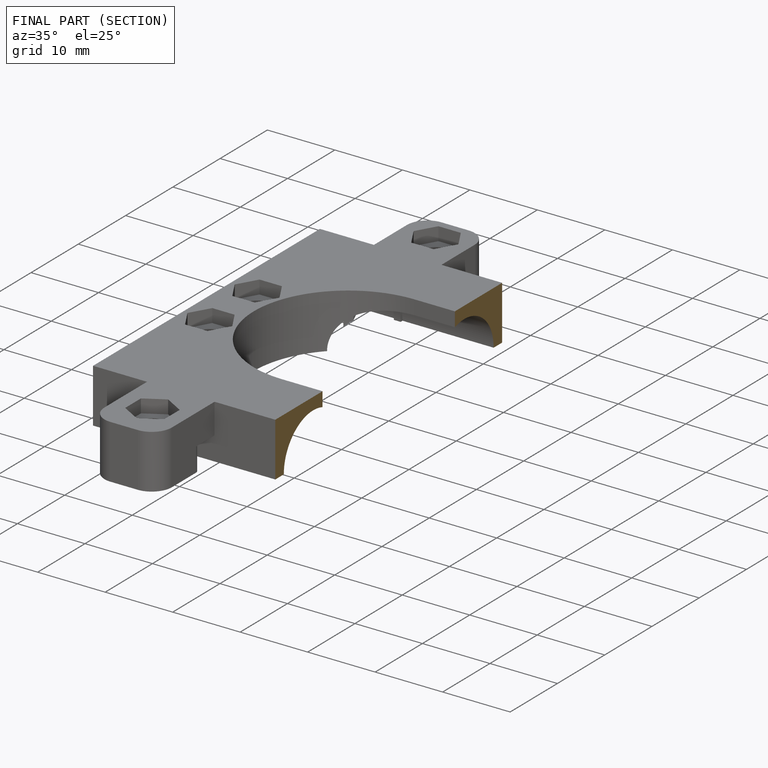
[diagram: finished part — half-section view (interior)]
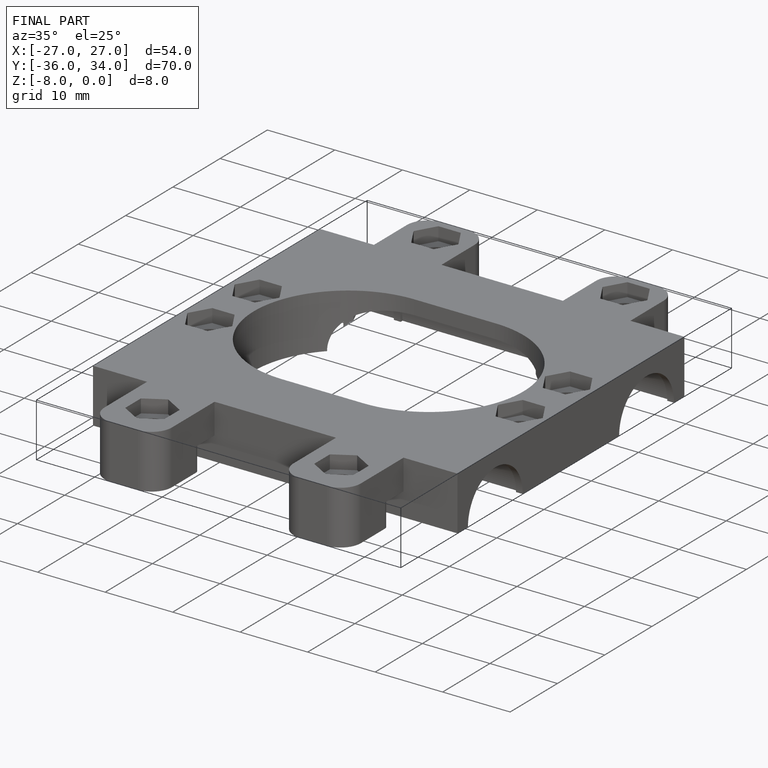
[diagram: finished part — iso view with bounding-box wireframe]
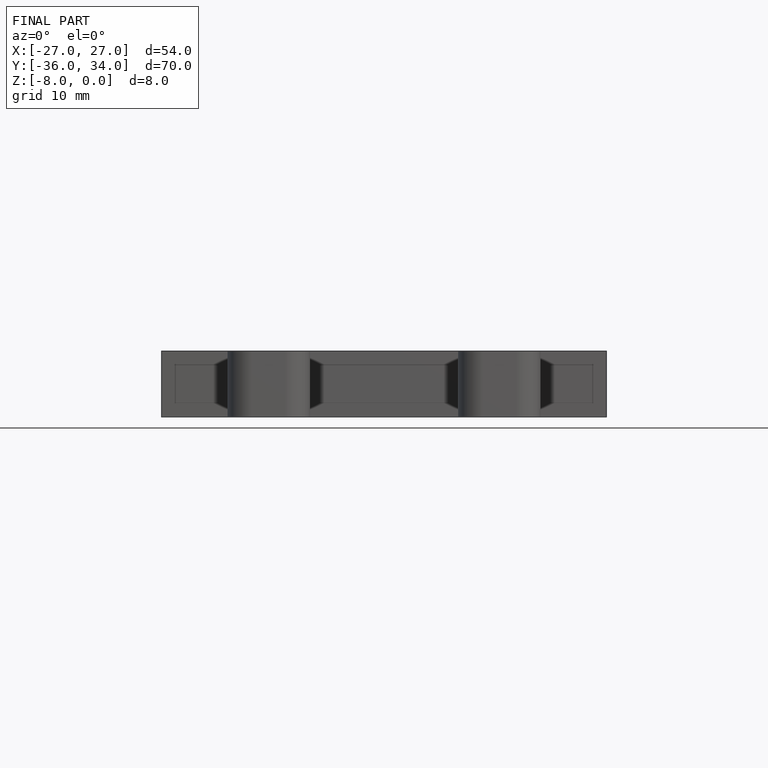
[diagram: finished part — front view with bounding-box wireframe]
